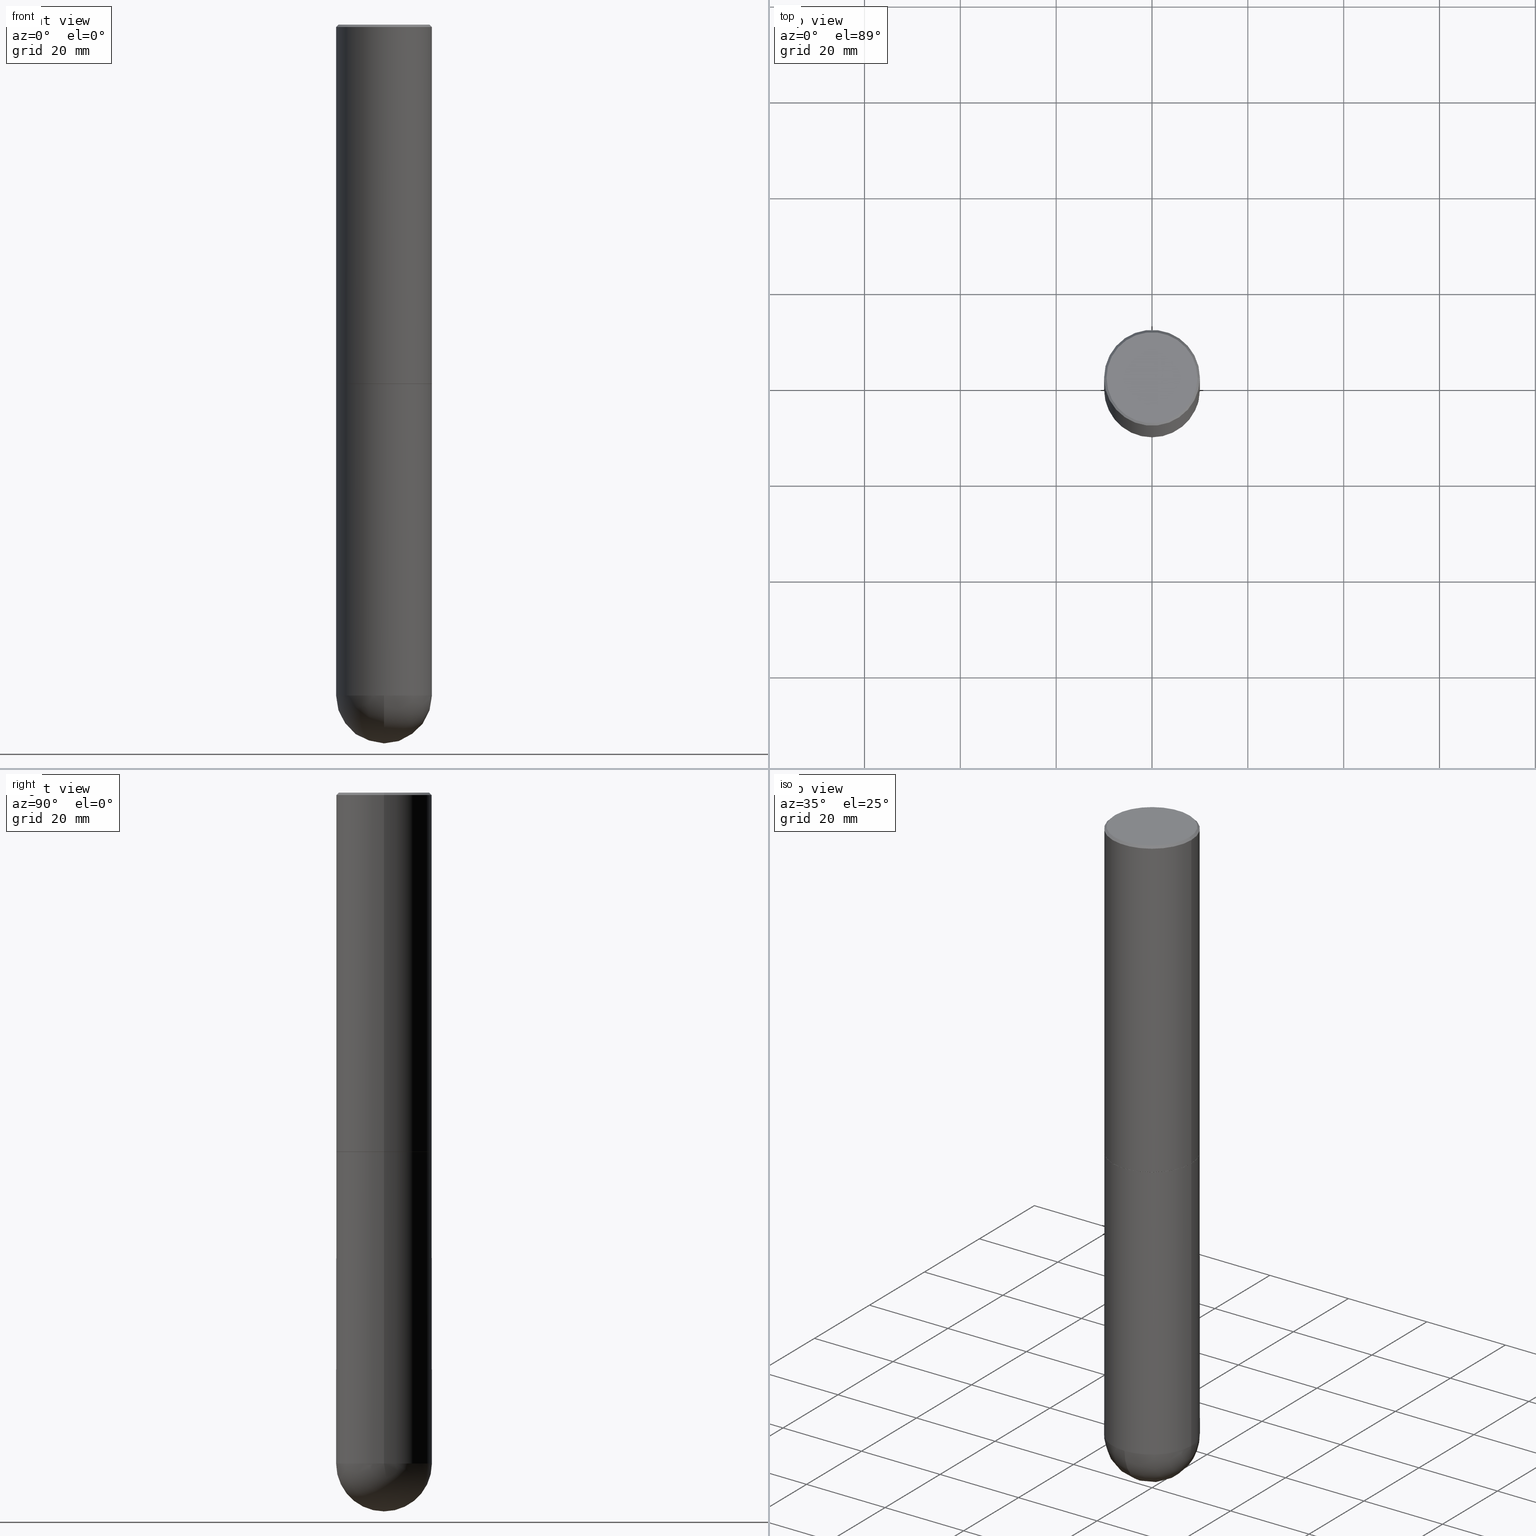
[diagram: canonical four-view strip — front | top / right | iso, engineering-drawing reading convention]
A machine part, canonical four-view strip (front | top / right | iso — engineering-drawing reading convention). The complete STEP part file that produces these views, byte-faithful:
ISO-10303-21;
HEADER;
FILE_DESCRIPTION (( 'STEP AP203' ),
    '1' );
FILE_NAME ('49529.STEP',
    '2024-04-10T12:15:42',
    ( '' ),
    ( '' ),
    'SwSTEP 2.0',
    'SolidWorks 2023',
    '' );
FILE_SCHEMA (( 'CONFIG_CONTROL_DESIGN' ));
ENDSEC;

DATA;
#1 = DIRECTION ( 'NONE',  ( -2.445468806185136877E-29, 3.491481338843145188E-15, 1.000000000000000000 ) ) ;
#2 = EDGE_LOOP ( 'NONE', ( #296, #62, #185, #7 ) ) ;
#3 = CC_DESIGN_PERSON_AND_ORGANIZATION_ASSIGNMENT ( #363, #161, ( #35 ) ) ;
#4 = PERSON_AND_ORGANIZATION_ROLE ( 'design_owner' ) ;
#5 = ORIENTED_EDGE ( 'NONE', *, *, #345, .T. ) ;
#6 = APPROVAL_ROLE ( '' ) ;
#7 = ORIENTED_EDGE ( 'NONE', *, *, #211, .F. ) ;
#8 = AXIS2_PLACEMENT_3D ( 'NONE', #251, #152, #124 ) ;
#9 = APPROVAL_PERSON_ORGANIZATION ( #227, #380, #6 ) ;
#10 = DIRECTION ( 'NONE',  ( 1.000000000000000000, 0.000000000000000000, 0.000000000000000000 ) ) ;
#11 = EDGE_LOOP ( 'NONE', ( #316, #5 ) ) ;
#12 = ADVANCED_FACE ( 'NONE', ( #362 ), #171, .T. ) ;
#13 = ORIENTED_EDGE ( 'NONE', *, *, #207, .F. ) ;
#14 = CC_DESIGN_DATE_AND_TIME_ASSIGNMENT ( #203, #201, ( #88 ) ) ;
#15 = SHAPE_DEFINITION_REPRESENTATION ( #189, #68 ) ;
#16 = PLANE ( 'NONE',  #182 ) ;
#17 = AXIS2_PLACEMENT_3D ( 'NONE', #404, #73, #376 ) ;
#18 = DIRECTION ( 'NONE',  ( 1.000000000000000000, -6.982962677686267499E-15, 0.000000000000000000 ) ) ;
#19 = DIRECTION ( 'NONE',  ( -2.445468806185136597E-29, 3.491481338843145583E-15, 1.000000000000000000 ) ) ;
#20 = EDGE_LOOP ( 'NONE', ( #92, #323, #364, #78 ) ) ;
#21 = FACE_OUTER_BOUND ( 'NONE', #42, .T. ) ;
#22 = CIRCLE ( 'NONE', #329, 0.3736999999999996991 ) ;
#23 = CC_DESIGN_APPROVAL ( #380, ( #35 ) ) ;
#24 = CARTESIAN_POINT ( 'NONE',  ( 0.3937000000000001609, -2.749192406205084400E-15, 1.919750796630860732E-29 ) ) ;
#25 = ADVANCED_FACE ( 'NONE', ( #114 ), #63, .T. ) ;
#26 = FACE_OUTER_BOUND ( 'NONE', #154, .T. ) ;
#27 = DIRECTION ( 'NONE',  ( -2.445468806185136597E-29, 3.491481338843145583E-15, 1.000000000000000000 ) ) ;
#28 = DIRECTION ( 'NONE',  ( -2.445468806185136597E-29, 3.491481338843145583E-15, 1.000000000000000000 ) ) ;
#29 = AXIS2_PLACEMENT_3D ( 'NONE', #53, #412, #381 ) ;
#30 = FACE_OUTER_BOUND ( 'NONE', #136, .T. ) ;
#31 = ADVANCED_FACE ( 'NONE', ( #21 ), #145, .T. ) ;
#32 = FACE_OUTER_BOUND ( 'NONE', #2, .T. ) ;
#33 = AXIS2_PLACEMENT_3D ( 'NONE', #148, #27, #81 ) ;
#34 = ORIENTED_EDGE ( 'NONE', *, *, #352, .F. ) ;
#35 = PRODUCT_DEFINITION ( 'UNKNOWN', '', #287, #387 ) ;
#36 = ORIENTED_EDGE ( 'NONE', *, *, #149, .F. ) ;
#37 = APPROVAL_DATE_TIME ( #322, #380 ) ;
#38 = VERTEX_POINT ( 'NONE', #398 ) ;
#39 = ORIENTED_EDGE ( 'NONE', *, *, #123, .F. ) ;
#40 = VECTOR ( 'NONE', #229, 39.37007874015748854 ) ;
#41 = DATE_TIME_ROLE ( 'creation_date' ) ;
#42 = EDGE_LOOP ( 'NONE', ( #69, #168, #291, #58 ) ) ;
#43 = PERSON_AND_ORGANIZATION ( #309, #302 ) ;
#44 = DIRECTION ( 'NONE',  ( 1.000000000000000000, -6.982962677686266711E-15, 4.869618210878415705E-29 ) ) ;
#45 = APPLICATION_CONTEXT ( 'configuration controlled 3d designs of mechanical parts and assemblies' ) ;
#46 = PERSON_AND_ORGANIZATION_ROLE ( 'creator' ) ;
#47 = CARTESIAN_POINT ( 'NONE',  ( 7.220735744022852519E-29, -1.030929694920215502E-14, -2.952700000000000102 ) ) ;
#48 = CIRCLE ( 'NONE', #268, 0.3937000000000000499 ) ;
#49 = CARTESIAN_POINT ( 'NONE',  ( 0.000000000000000000, 0.000000000000000000, 0.000000000000000000 ) ) ;
#50 = DIRECTION ( 'NONE',  ( 2.445468806185136597E-29, -3.491481338843145583E-15, -1.000000000000000000 ) ) ;
#51 = EDGE_CURVE ( 'NONE', #38, #159, #219, .T. ) ;
#52 = AXIS2_PLACEMENT_3D ( 'NONE', #49, #370, #109 ) ;
#53 = CARTESIAN_POINT ( 'NONE',  ( 4.890937612370295054E-31, -6.982962677686322424E-17, -0.02000000000000009062 ) ) ;
#54 = CARTESIAN_POINT ( 'NONE',  ( 7.220735744022853640E-29, -1.030929694920215659E-14, -2.952700000000000546 ) ) ;
#55 = CARTESIAN_POINT ( 'NONE',  ( -0.3937000000000001054, 2.797406750687515181E-15, -1.936584745033357016E-29 ) ) ;
#56 = EDGE_CURVE ( 'NONE', #38, #128, #199, .T. ) ;
#57 = DIRECTION ( 'NONE',  ( -2.445468806185136597E-29, 3.491481338843145583E-15, 1.000000000000000000 ) ) ;
#58 = ORIENTED_EDGE ( 'NONE', *, *, #75, .F. ) ;
#59 = CARTESIAN_POINT ( 'NONE',  ( -0.3937000000000003830, -2.390410796632568923E-15, -2.951700000000000212 ) ) ;
#60 = ADVANCED_FACE ( 'NONE', ( #242 ), #320, .T. ) ;
#61 = PERSON_AND_ORGANIZATION ( #309, #302 ) ;
#62 = ORIENTED_EDGE ( 'NONE', *, *, #383, .T. ) ;
#63 = CONICAL_SURFACE ( 'NONE', #301, 0.3937000000000000499, 0.7853981633974473908 ) ;
#64 = ORIENTED_EDGE ( 'NONE', *, *, #160, .F. ) ;
#65 = ADVANCED_FACE ( 'NONE', ( #240 ), #204, .T. ) ;
#66 = EDGE_LOOP ( 'NONE', ( #233, #331, #258, #195 ) ) ;
#67 = COORDINATED_UNIVERSAL_TIME_OFFSET ( 5, 0, .BEHIND. ) ;
#68 = ADVANCED_BREP_SHAPE_REPRESENTATION ( '49529', ( #238, #104, #321 ), #351 ) ;
#69 = ORIENTED_EDGE ( 'NONE', *, *, #253, .T. ) ;
#70 = CC_DESIGN_SECURITY_CLASSIFICATION ( #88, ( #287 ) ) ;
#71 = CC_DESIGN_APPROVAL ( #348, ( #287 ) ) ;
#72 = SECURITY_CLASSIFICATION_LEVEL ( 'unclassified' ) ;
#73 = DIRECTION ( 'NONE',  ( -2.445468806185136597E-29, 3.491481338843145583E-15, 1.000000000000000000 ) ) ;
#74 = DIRECTION ( 'NONE',  ( -1.000000000000000000, 6.982962677686265922E-15, -4.876176775795935793E-29 ) ) ;
#75 = EDGE_CURVE ( 'NONE', #266, #230, #208, .T. ) ;
#76 = DIRECTION ( 'NONE',  ( -1.000000000000000000, 6.982962677686265922E-15, 0.000000000000000000 ) ) ;
#77 = DIRECTION ( 'NONE',  ( -2.445468806185136597E-29, 3.491481338843145583E-15, 1.000000000000000000 ) ) ;
#78 = ORIENTED_EDGE ( 'NONE', *, *, #375, .F. ) ;
#79 = ADVANCED_FACE ( 'NONE', ( #112 ), #155, .T. ) ;
#80 = DIRECTION ( 'NONE',  ( -1.000000000000000000, 6.982962677686265922E-15, -4.883557194083112340E-29 ) ) ;
#81 = DIRECTION ( 'NONE',  ( 1.000000000000000000, -6.982962677686266711E-15, 4.869618210878415705E-29 ) ) ;
#82 = AXIS2_PLACEMENT_3D ( 'NONE', #210, #353, #84 ) ;
#83 = AXIS2_PLACEMENT_3D ( 'NONE', #96, #196, #127 ) ;
#84 = DIRECTION ( 'NONE',  ( 1.000000000000000000, -6.982962677686269077E-15, 0.000000000000000000 ) ) ;
#85 = CARTESIAN_POINT ( 'NONE',  ( 0.000000000000000000, 0.000000000000000000, 0.000000000000000000 ) ) ;
#86 = LINE ( 'NONE', #392, #279 ) ;
#87 = CARTESIAN_POINT ( 'NONE',  ( 0.3926999999999999935, -1.305150639272955380E-14, -2.952700000000000546 ) ) ;
#88 = SECURITY_CLASSIFICATION ( '', '', #72 ) ;
#89 = EDGE_CURVE ( 'NONE', #237, #292, #209, .T. ) ;
#90 = CARTESIAN_POINT ( 'NONE',  ( 0.3736999999999996991, -2.667287895133366781E-15, 2.774533118565451882E-16 ) ) ;
#91 = CARTESIAN_POINT ( 'NONE',  ( 0.3937000000000000499, -1.305848935540723823E-14, -2.952700000000000102 ) ) ;
#92 = ORIENTED_EDGE ( 'NONE', *, *, #383, .F. ) ;
#93 = APPLICATION_PROTOCOL_DEFINITION ( 'international standard', 'config_control_design', 1994, #45 ) ;
#94 = CIRCLE ( 'NONE', #33, 0.3736999999999996991 ) ;
#95 = VERTEX_POINT ( 'NONE', #307 ) ;
#96 = CARTESIAN_POINT ( 'NONE',  ( 7.218290275216666916E-29, -1.030580546786331359E-14, -2.951700000000000212 ) ) ;
#97 = ORIENTED_EDGE ( 'NONE', *, *, #308, .T. ) ;
#98 = APPLICATION_CONTEXT ( 'configuration controlled 3d designs of mechanical parts and assemblies' ) ;
#99 = VERTEX_POINT ( 'NONE', #276 ) ;
#100 = EDGE_LOOP ( 'NONE', ( #200, #97, #157, #390, #393 ) ) ;
#101 = AXIS2_PLACEMENT_3D ( 'NONE', #178, #374, #310 ) ;
#102 = CIRCLE ( 'NONE', #132, 0.3937000000000001054 ) ;
#103 = CC_DESIGN_PERSON_AND_ORGANIZATION_ASSIGNMENT ( #61, #4, ( #235 ) ) ;
#104 = MANIFOLD_SOLID_BREP ( 'Body-Move/Copy2[2]', #166 ) ;
#105 = CARTESIAN_POINT ( 'NONE',  ( 4.890937612370295054E-31, -6.982962677686322424E-17, -0.02000000000000009062 ) ) ;
#106 = PERSON_AND_ORGANIZATION ( #309, #302 ) ;
#107 = DIRECTION ( 'NONE',  ( 1.000000000000000000, -6.982962677686266711E-15, 0.000000000000000000 ) ) ;
#108 = APPROVAL_DATE_TIME ( #369, #140 ) ;
#109 = DIRECTION ( 'NONE',  ( 1.000000000000000000, -6.982962677686266711E-15, 4.876176775795935793E-29 ) ) ;
#110 = EDGE_LOOP ( 'NONE', ( #228, #39, #146, #197 ) ) ;
#111 = AXIS2_PLACEMENT_3D ( 'NONE', #54, #57, #153 ) ;
#112 = FACE_OUTER_BOUND ( 'NONE', #131, .T. ) ;
#113 = CC_DESIGN_PERSON_AND_ORGANIZATION_ASSIGNMENT ( #170, #300, ( #287 ) ) ;
#114 = FACE_OUTER_BOUND ( 'NONE', #110, .T. ) ;
#115 = CARTESIAN_POINT ( 'NONE',  ( -0.3736999999999996991, 2.644447966039788269E-15, 2.774533118565083582E-16 ) ) ;
#116 = CIRCLE ( 'NONE', #174, 0.3937000000000000499 ) ;
#117 = CARTESIAN_POINT ( 'NONE',  ( 0.3937000000000000499, -2.770807688499515734E-15, -0.02000000000000009062 ) ) ;
#118 = EDGE_CURVE ( 'NONE', #159, #99, #236, .T. ) ;
#119 = VECTOR ( 'NONE', #284, 39.37007874015748143 ) ;
#120 = PLANE ( 'NONE',  #8 ) ;
#121 = UNCERTAINTY_MEASURE_WITH_UNIT (LENGTH_MEASURE( 1.000000000000000082E-05 ), #133, 'distance_accuracy_value', 'NONE');
#122 = CARTESIAN_POINT ( 'NONE',  ( 0.3937000000000000499, -2.770807688499515734E-15, -0.02000000000000009062 ) ) ;
#123 = EDGE_CURVE ( 'NONE', #218, #395, #22, .T. ) ;
#124 = DIRECTION ( 'NONE',  ( 1.000000000000000000, -6.982962677686265922E-15, 4.876176775795935793E-29 ) ) ;
#125 = LOCAL_TIME ( 8, 15, 42.00000000000000000, #324 ) ;
#126 = CC_DESIGN_PERSON_AND_ORGANIZATION_ASSIGNMENT ( #43, #46, ( #287 ) ) ;
#127 = DIRECTION ( 'NONE',  ( 1.000000000000000000, -6.982962677686269077E-15, 0.000000000000000000 ) ) ;
#128 = VERTEX_POINT ( 'NONE', #298 ) ;
#129 = EDGE_LOOP ( 'NONE', ( #295, #216 ) ) ;
#130 = CARTESIAN_POINT ( 'NONE',  ( 0.000000000000000000, 0.000000000000000000, 0.000000000000000000 ) ) ;
#131 = EDGE_LOOP ( 'NONE', ( #328, #188, #356, #13 ) ) ;
#132 = AXIS2_PLACEMENT_3D ( 'NONE', #359, #386, #290 ) ;
#133 =( CONVERSION_BASED_UNIT ( 'INCH', #167 ) LENGTH_UNIT ( ) NAMED_UNIT ( #275 ) );
#134 = ORIENTED_EDGE ( 'NONE', *, *, #56, .F. ) ;
#135 = APPROVAL_ROLE ( '' ) ;
#136 = EDGE_LOOP ( 'NONE', ( #193, #162 ) ) ;
#137 = ADVANCED_FACE ( 'NONE', ( #147 ), #16, .F. ) ;
#138 = CARTESIAN_POINT ( 'NONE',  ( 2.749192406205155397E-15, 0.3936999999999897248, -2.952700000000001435 ) ) ;
#139 = AXIS2_PLACEMENT_3D ( 'NONE', #144, #272, #401 ) ;
#140 = APPROVAL ( #172, 'UNSPECIFIED' ) ;
#141 = COORDINATED_UNIVERSAL_TIME_OFFSET ( 5, 0, .BEHIND. ) ;
#142 = CARTESIAN_POINT ( 'NONE',  ( 1.347893496593123646E-28, -1.924434684343564878E-14, -5.511800000000000033 ) ) ;
#143 = APPROVAL_DATE_TIME ( #332, #348 ) ;
#144 = CARTESIAN_POINT ( 'NONE',  ( 7.220735744022853640E-29, -1.030929694920215659E-14, -2.952700000000000546 ) ) ;
#145 = CYLINDRICAL_SURFACE ( 'NONE', #17, 0.3937000000000001609 ) ;
#146 = ORIENTED_EDGE ( 'NONE', *, *, #207, .T. ) ;
#147 = FACE_OUTER_BOUND ( 'NONE', #11, .T. ) ;
#148 = CARTESIAN_POINT ( 'NONE',  ( -6.785034193178928885E-45, 9.687230607472908306E-31, 2.774533118565267485E-16 ) ) ;
#149 = EDGE_CURVE ( 'NONE', #388, #95, #274, .T. ) ;
#150 = DIRECTION ( 'NONE',  ( 1.000000000000000000, -6.982962677686265133E-15, 0.000000000000000000 ) ) ;
#151 = CARTESIAN_POINT ( 'NONE',  ( 7.220735744022852519E-29, -1.030929694920215502E-14, -2.952700000000000102 ) ) ;
#152 = DIRECTION ( 'NONE',  ( -2.438088387897960049E-29, 3.491481338843145188E-15, 1.000000000000000000 ) ) ;
#153 = DIRECTION ( 'NONE',  ( 1.000000000000000000, -6.982962677686265133E-15, 0.000000000000000000 ) ) ;
#154 = EDGE_LOOP ( 'NONE', ( #134, #225, #64, #325 ) ) ;
#155 = CONICAL_SURFACE ( 'NONE', #206, 0.3937000000000000499, 0.7853981633974473908 ) ;
#156 = CARTESIAN_POINT ( 'NONE',  ( 4.890937612370295054E-31, -6.982962677686322424E-17, -0.02000000000000009062 ) ) ;
#157 = ORIENTED_EDGE ( 'NONE', *, *, #402, .T. ) ;
#158 =( NAMED_UNIT ( * ) SI_UNIT ( $, .STERADIAN. ) SOLID_ANGLE_UNIT ( ) );
#159 = VERTEX_POINT ( 'NONE', #306 ) ;
#160 = EDGE_CURVE ( 'NONE', #259, #159, #250, .T. ) ;
#161 = PERSON_AND_ORGANIZATION_ROLE ( 'creator' ) ;
#162 = ORIENTED_EDGE ( 'NONE', *, *, #169, .F. ) ;
#163 = CARTESIAN_POINT ( 'NONE',  ( 0.000000000000000000, 0.000000000000000000, 0.000000000000000000 ) ) ;
#164 = AXIS2_PLACEMENT_3D ( 'NONE', #378, #312, #150 ) ;
#165 = ORIENTED_EDGE ( 'NONE', *, *, #308, .F. ) ;
#166 = CLOSED_SHELL ( 'NONE', ( #286, #31, #79, #25, #339, #60, #194, #281 ) ) ;
#167 = LENGTH_MEASURE_WITH_UNIT ( LENGTH_MEASURE( 0.02539999999999999897 ), #222 );
#168 = ORIENTED_EDGE ( 'NONE', *, *, #89, .T. ) ;
#169 = EDGE_CURVE ( 'NONE', #283, #347, #358, .T. ) ;
#170 = PERSON_AND_ORGANIZATION ( #309, #302 ) ;
#171 = CYLINDRICAL_SURFACE ( 'NONE', #52, 0.3937000000000001054 ) ;
#172 = APPROVAL_STATUS ( 'not_yet_approved' ) ;
#173 = DIRECTION ( 'NONE',  ( 1.000000000000000000, -6.982962677686265133E-15, 0.000000000000000000 ) ) ;
#174 = AXIS2_PLACEMENT_3D ( 'NONE', #151, #28, #280 ) ;
#175 = VECTOR ( 'NONE', #202, 39.37007874015748143 ) ;
#176 = DIRECTION ( 'NONE',  ( -2.445468806185136597E-29, 3.491481338843145583E-15, 1.000000000000000000 ) ) ;
#177 = DIRECTION ( 'NONE',  ( -2.445468806185136877E-29, 3.491481338843145188E-15, 1.000000000000000000 ) ) ;
#178 = CARTESIAN_POINT ( 'NONE',  ( 1.314781518801735134E-28, -1.971852921157570065E-14, -5.511800000000000033 ) ) ;
#179 = CARTESIAN_POINT ( 'NONE',  ( 1.347893496593123646E-28, -1.924434684343564878E-14, -5.511800000000000033 ) ) ;
#180 = DIRECTION ( 'NONE',  ( 6.982962677686265922E-15, 1.000000000000000000, -2.775563112689116301E-15 ) ) ;
#181 = DIRECTION ( 'NONE',  ( -2.445468806185136597E-29, 3.491481338843145583E-15, 1.000000000000000000 ) ) ;
#182 = AXIS2_PLACEMENT_3D ( 'NONE', #138, #368, #74 ) ;
#183 = EDGE_CURVE ( 'NONE', #99, #95, #315, .T. ) ;
#184 = CARTESIAN_POINT ( 'NONE',  ( -0.3937000000000000499, 2.679362779428219918E-15, -0.02000000000000009062 ) ) ;
#185 = ORIENTED_EDGE ( 'NONE', *, *, #253, .F. ) ;
#186 = CARTESIAN_POINT ( 'NONE',  ( 2.609533152651355437E-15, 0.3736999999999996991, -1.166039920397419176E-15 ) ) ;
#187 = DIRECTION ( 'NONE',  ( -2.445468806185136597E-29, 3.491481338843145583E-15, 1.000000000000000000 ) ) ;
#188 = ORIENTED_EDGE ( 'NONE', *, *, #224, .T. ) ;
#189 = PRODUCT_DEFINITION_SHAPE ( 'NONE', 'NONE',  #35 ) ;
#190 = CONICAL_SURFACE ( 'NONE', #111, 0.3926999999999999935, 0.7853981633974141952 ) ;
#191 = LINE ( 'NONE', #327, #40 ) ;
#192 = LOCAL_TIME ( 8, 15, 42.00000000000000000, #305 ) ;
#193 = ORIENTED_EDGE ( 'NONE', *, *, #334, .F. ) ;
#194 = ADVANCED_FACE ( 'NONE', ( #30 ), #120, .F. ) ;
#195 = ORIENTED_EDGE ( 'NONE', *, *, #299, .F. ) ;
#196 = DIRECTION ( 'NONE',  ( -2.445468806185136597E-29, 3.491481338843145583E-15, 1.000000000000000000 ) ) ;
#197 = ORIENTED_EDGE ( 'NONE', *, *, #299, .T. ) ;
#198 = CALENDAR_DATE ( 2024, 10, 4 ) ;
#199 = CIRCLE ( 'NONE', #101, 0.3937000000000001054 ) ;
#200 = ORIENTED_EDGE ( 'NONE', *, *, #183, .F. ) ;
#201 = DATE_TIME_ROLE ( 'classification_date' ) ;
#202 = DIRECTION ( 'NONE',  ( -2.445468806185136877E-29, 3.491481338843145188E-15, 1.000000000000000000 ) ) ;
#203 = DATE_AND_TIME ( #234, #244 ) ;
#204 = SPHERICAL_SURFACE ( 'NONE', #408, 0.3937000000000001054 ) ;
#205 = DIRECTION ( 'NONE',  ( 6.982962677686265133E-15, 1.000000000000000000, 0.000000000000000000 ) ) ;
#206 = AXIS2_PLACEMENT_3D ( 'NONE', #105, #50, #405 ) ;
#207 = EDGE_CURVE ( 'NONE', #218, #292, #215, .T. ) ;
#208 = LINE ( 'NONE', #24, #175 ) ;
#209 = LINE ( 'NONE', #269, #285 ) ;
#210 = CARTESIAN_POINT ( 'NONE',  ( 7.218290275216666916E-29, -1.030580546786331359E-14, -2.951700000000000212 ) ) ;
#211 = EDGE_CURVE ( 'NONE', #347, #266, #282, .T. ) ;
#212 = AXIS2_PLACEMENT_3D ( 'NONE', #336, #77, #173 ) ;
#213 = CIRCLE ( 'NONE', #83, 0.3937000000000002720 ) ;
#214 = CARTESIAN_POINT ( 'NONE',  ( 1.314781518801735134E-28, -1.971852921157570065E-14, -5.511800000000000033 ) ) ;
#215 = LINE ( 'NONE', #184, #119 ) ;
#216 = ORIENTED_EDGE ( 'NONE', *, *, #231, .T. ) ;
#217 = DIRECTION ( 'NONE',  ( -2.445468806185136877E-29, 3.491481338843145188E-15, 1.000000000000000000 ) ) ;
#218 = VERTEX_POINT ( 'NONE', #115 ) ;
#219 = CIRCLE ( 'NONE', #391, 0.3937000000000001054 ) ;
#220 = CC_DESIGN_PERSON_AND_ORGANIZATION_ASSIGNMENT ( #335, #297, ( #88 ) ) ;
#221 = DIRECTION ( 'NONE',  ( -1.000000000000000000, 6.982962677686265922E-15, -4.876176775795935793E-29 ) ) ;
#222 =( LENGTH_UNIT ( ) NAMED_UNIT ( * ) SI_UNIT ( $, .METRE. ) );
#223 = APPLICATION_PROTOCOL_DEFINITION ( 'international standard', 'config_control_design', 1994, #98 ) ;
#224 = EDGE_CURVE ( 'NONE', #395, #230, #411, .T. ) ;
#225 = ORIENTED_EDGE ( 'NONE', *, *, #51, .T. ) ;
#226 = VECTOR ( 'NONE', #252, 39.37007874015748854 ) ;
#227 = PERSON_AND_ORGANIZATION ( #309, #302 ) ;
#228 = ORIENTED_EDGE ( 'NONE', *, *, #224, .F. ) ;
#229 = DIRECTION ( 'NONE',  ( -0.7071067811865232589, 7.493145998870265808E-15, 0.7071067811865715536 ) ) ;
#230 = VERTEX_POINT ( 'NONE', #122 ) ;
#231 = EDGE_CURVE ( 'NONE', #395, #218, #94, .T. ) ;
#232 = CALENDAR_DATE ( 2024, 10, 4 ) ;
#233 = ORIENTED_EDGE ( 'NONE', *, *, #89, .F. ) ;
#234 = CALENDAR_DATE ( 2024, 10, 4 ) ;
#235 = PRODUCT ( '49529', '49529', '', ( #355 ) ) ;
#236 = CIRCLE ( 'NONE', #396, 0.3937000000000001054 ) ;
#237 = VERTEX_POINT ( 'NONE', #59 ) ;
#238 = MANIFOLD_SOLID_BREP ( 'Body-Move/Copy2[1]', #372 ) ;
#239 = DIRECTION ( 'NONE',  ( 6.982962677686265922E-15, 1.000000000000000000, -2.775563112689116301E-15 ) ) ;
#240 = FACE_OUTER_BOUND ( 'NONE', #403, .T. ) ;
#241 = APPROVAL_ROLE ( '' ) ;
#242 = FACE_OUTER_BOUND ( 'NONE', #20, .T. ) ;
#243 = VECTOR ( 'NONE', #377, 39.37007874015748143 ) ;
#244 = LOCAL_TIME ( 8, 15, 42.00000000000000000, #141 ) ;
#245 = DIRECTION ( 'NONE',  ( 1.000000000000000000, -6.982962677686266711E-15, 0.000000000000000000 ) ) ;
#246 = CARTESIAN_POINT ( 'NONE',  ( 4.890937612370295054E-31, -6.982962677686322424E-17, -0.02000000000000009062 ) ) ;
#247 = CC_DESIGN_DATE_AND_TIME_ASSIGNMENT ( #330, #41, ( #35 ) ) ;
#248 = DIRECTION ( 'NONE',  ( -2.445468806185136597E-29, 3.491481338843145583E-15, 1.000000000000000000 ) ) ;
#249 = AXIS2_PLACEMENT_3D ( 'NONE', #214, #344, #180 ) ;
#250 = CIRCLE ( 'NONE', #304, 0.3937000000000001054 ) ;
#251 = CARTESIAN_POINT ( 'NONE',  ( 7.220735744022853640E-29, -1.030929694920215659E-14, -2.952700000000000546 ) ) ;
#252 = DIRECTION ( 'NONE',  ( 0.7071067811865232589, -2.468850131082003836E-15, 0.7071067811865715536 ) ) ;
#253 = EDGE_CURVE ( 'NONE', #266, #237, #267, .T. ) ;
#254 = FACE_OUTER_BOUND ( 'NONE', #129, .T. ) ;
#255 = APPROVAL_PERSON_ORGANIZATION ( #106, #140, #135 ) ;
#256 = DIRECTION ( 'NONE',  ( 1.000000000000000000, -6.982962677686265922E-15, 0.000000000000000000 ) ) ;
#257 = FACE_OUTER_BOUND ( 'NONE', #100, .T. ) ;
#258 = ORIENTED_EDGE ( 'NONE', *, *, #75, .T. ) ;
#259 = VERTEX_POINT ( 'NONE', #410 ) ;
#260 = AXIS2_PLACEMENT_3D ( 'NONE', #179, #248, #311 ) ;
#261 = DIRECTION ( 'NONE',  ( -2.445468806185136597E-29, 3.491481338843145583E-15, 1.000000000000000000 ) ) ;
#262 = LOCAL_TIME ( 8, 15, 42.00000000000000000, #67 ) ;
#263 = ORIENTED_EDGE ( 'NONE', *, *, #51, .F. ) ;
#264 = APPROVAL_STATUS ( 'not_yet_approved' ) ;
#265 = ORIENTED_EDGE ( 'NONE', *, *, #183, .T. ) ;
#266 = VERTEX_POINT ( 'NONE', #342 ) ;
#267 = CIRCLE ( 'NONE', #82, 0.3937000000000002720 ) ;
#268 = AXIS2_PLACEMENT_3D ( 'NONE', #156, #261, #256 ) ;
#269 = CARTESIAN_POINT ( 'NONE',  ( -0.3937000000000001609, 2.797406750687515575E-15, -1.936584745033357296E-29 ) ) ;
#270 = COORDINATED_UNIVERSAL_TIME_OFFSET ( 5, 0, .BEHIND. ) ;
#271 = CARTESIAN_POINT ( 'NONE',  ( 1.314781518801735134E-28, -1.971852921157570065E-14, -5.511800000000000033 ) ) ;
#272 = DIRECTION ( 'NONE',  ( -2.445468806185136597E-29, 3.491481338843145583E-15, 1.000000000000000000 ) ) ;
#273 = DIRECTION ( 'NONE',  ( 2.445468806185136597E-29, -3.491481338843145583E-15, -1.000000000000000000 ) ) ;
#274 = CIRCLE ( 'NONE', #385, 0.3937000000000000499 ) ;
#275 = DIMENSIONAL_EXPONENTS ( 1.000000000000000000, 0.000000000000000000, 0.000000000000000000, 0.000000000000000000, 0.000000000000000000, 0.000000000000000000, 0.000000000000000000 ) ;
#276 = CARTESIAN_POINT ( 'NONE',  ( -0.3937000000000001054, -1.197941514563138553E-14, -5.511800000000000033 ) ) ;
#277 = PRODUCT_RELATED_PRODUCT_CATEGORY ( 'detail', '', ( #235 ) ) ;
#278 = FACE_OUTER_BOUND ( 'NONE', #66, .T. ) ;
#279 = VECTOR ( 'NONE', #1, 39.37007874015748143 ) ;
#280 = DIRECTION ( 'NONE',  ( 1.000000000000000000, -6.982962677686267499E-15, 0.000000000000000000 ) ) ;
#281 = ADVANCED_FACE ( 'NONE', ( #254 ), #349, .F. ) ;
#282 = LINE ( 'NONE', #87, #226 ) ;
#283 = VERTEX_POINT ( 'NONE', #317 ) ;
#284 = DIRECTION ( 'NONE',  ( -0.7071067811865469066, 2.468850131082250355E-15, -0.7071067811865481278 ) ) ;
#285 = VECTOR ( 'NONE', #177, 39.37007874015748143 ) ;
#286 = ADVANCED_FACE ( 'NONE', ( #32 ), #190, .T. ) ;
#287 = PRODUCT_DEFINITION_FORMATION_WITH_SPECIFIED_SOURCE ( 'ANY', '', #235, .NOT_KNOWN. ) ;
#288 = CYLINDRICAL_SURFACE ( 'NONE', #373, 0.3937000000000001054 ) ;
#289 = ORIENTED_EDGE ( 'NONE', *, *, #118, .F. ) ;
#290 = DIRECTION ( 'NONE',  ( 1.000000000000000000, -6.982962677686266711E-15, 0.000000000000000000 ) ) ;
#291 = ORIENTED_EDGE ( 'NONE', *, *, #361, .F. ) ;
#292 = VERTEX_POINT ( 'NONE', #346 ) ;
#293 = CIRCLE ( 'NONE', #164, 0.3926999999999999935 ) ;
#294 = CC_DESIGN_APPROVAL ( #140, ( #88 ) ) ;
#295 = ORIENTED_EDGE ( 'NONE', *, *, #123, .T. ) ;
#296 = ORIENTED_EDGE ( 'NONE', *, *, #334, .T. ) ;
#297 = PERSON_AND_ORGANIZATION_ROLE ( 'classification_officer' ) ;
#298 = CARTESIAN_POINT ( 'NONE',  ( -2.797406750687381075E-15, -0.3937000000000196454, -5.511799999999999145 ) ) ;
#299 = EDGE_CURVE ( 'NONE', #292, #230, #350, .T. ) ;
#300 = PERSON_AND_ORGANIZATION_ROLE ( 'design_supplier' ) ;
#301 = AXIS2_PLACEMENT_3D ( 'NONE', #246, #273, #76 ) ;
#302 = ORGANIZATION ( 'UNSPECIFIED', 'UNSPECIFIED', '' ) ;
#303 = DIRECTION ( 'NONE',  ( -2.445468806185136597E-29, 3.491481338843145583E-15, 1.000000000000000000 ) ) ;
#304 = AXIS2_PLACEMENT_3D ( 'NONE', #142, #19, #107 ) ;
#305 = COORDINATED_UNIVERSAL_TIME_OFFSET ( 5, 0, .BEHIND. ) ;
#306 = CARTESIAN_POINT ( 'NONE',  ( 2.749192406205216928E-15, 0.3936999999999805655, -5.511800000000000921 ) ) ;
#307 = CARTESIAN_POINT ( 'NONE',  ( -0.3937000000000000499, -1.197941514563138553E-14, -2.952700000000000102 ) ) ;
#308 = EDGE_CURVE ( 'NONE', #99, #128, #337, .T. ) ;
#309 = PERSON ( 'UNSPECIFIED', 'UNSPECIFIED', 'UNSPECIFIED', ('UNSPECIFIED'), ('UNSPECIFIED'), ('UNSPECIFIED') ) ;
#310 = DIRECTION ( 'NONE',  ( -7.105427357601001070E-15, -1.000000000000000000, 0.000000000000000000 ) ) ;
#311 = DIRECTION ( 'NONE',  ( 1.000000000000000000, -6.982962677686266711E-15, 0.000000000000000000 ) ) ;
#312 = DIRECTION ( 'NONE',  ( -2.445468806185136597E-29, 3.491481338843145583E-15, 1.000000000000000000 ) ) ;
#313 = DIRECTION ( 'NONE',  ( 1.000000000000000000, -6.982962677686266711E-15, 4.876176775795935793E-29 ) ) ;
#314 = VECTOR ( 'NONE', #217, 39.37007874015748143 ) ;
#315 = LINE ( 'NONE', #55, #314 ) ;
#316 = ORIENTED_EDGE ( 'NONE', *, *, #149, .T. ) ;
#317 = CARTESIAN_POINT ( 'NONE',  ( -0.3926999999999999935, -7.513697171524020413E-15, -2.952700000000000546 ) ) ;
#318 = DIRECTION ( 'NONE',  ( 1.000000000000000000, -6.982962677686266711E-15, 4.876176775795935793E-29 ) ) ;
#319 = EDGE_LOOP ( 'NONE', ( #367, #265, #36, #34, #394 ) ) ;
#320 = CONICAL_SURFACE ( 'NONE', #212, 0.3926999999999999935, 0.7853981633974141952 ) ;
#321 = AXIS2_PLACEMENT_3D ( 'NONE', #163, #389, #10 ) ;
#322 = DATE_AND_TIME ( #232, #125 ) ;
#323 = ORIENTED_EDGE ( 'NONE', *, *, #169, .T. ) ;
#324 = COORDINATED_UNIVERSAL_TIME_OFFSET ( 5, 0, .BEHIND. ) ;
#325 = ORIENTED_EDGE ( 'NONE', *, *, #402, .F. ) ;
#326 = ADVANCED_FACE ( 'NONE', ( #26 ), #406, .T. ) ;
#327 = CARTESIAN_POINT ( 'NONE',  ( -0.3926999999999999935, -7.518995625872242816E-15, -2.952700000000000546 ) ) ;
#328 = ORIENTED_EDGE ( 'NONE', *, *, #231, .F. ) ;
#329 = AXIS2_PLACEMENT_3D ( 'NONE', #341, #176, #44 ) ;
#330 = DATE_AND_TIME ( #198, #262 ) ;
#331 = ORIENTED_EDGE ( 'NONE', *, *, #375, .T. ) ;
#332 = DATE_AND_TIME ( #371, #409 ) ;
#333 = DIRECTION ( 'NONE',  ( -2.445468806185136597E-29, 3.491481338843145583E-15, 1.000000000000000000 ) ) ;
#334 = EDGE_CURVE ( 'NONE', #347, #283, #293, .T. ) ;
#335 = PERSON_AND_ORGANIZATION ( #309, #302 ) ;
#336 = CARTESIAN_POINT ( 'NONE',  ( 7.220735744022853640E-29, -1.030929694920215659E-14, -2.952700000000000546 ) ) ;
#337 = CIRCLE ( 'NONE', #260, 0.3937000000000001054 ) ;
#338 = CARTESIAN_POINT ( 'NONE',  ( 1.314781518801735134E-28, -1.971852921157570065E-14, -5.511800000000000033 ) ) ;
#339 = ADVANCED_FACE ( 'NONE', ( #278 ), #407, .T. ) ;
#340 = DIRECTION ( 'NONE',  ( 1.000000000000000000, -6.982962677686265922E-15, 4.883557194083112340E-29 ) ) ;
#341 = CARTESIAN_POINT ( 'NONE',  ( -6.785034193178928885E-45, 9.687230607472908306E-31, 2.774533118565267485E-16 ) ) ;
#342 = CARTESIAN_POINT ( 'NONE',  ( 0.3937000000000002720, -1.305499787406839996E-14, -2.951700000000000212 ) ) ;
#343 = APPROVAL_PERSON_ORGANIZATION ( #365, #348, #241 ) ;
#344 = DIRECTION ( 'NONE',  ( -1.000000000000000000, 6.982962677686265922E-15, -4.883557194083112340E-29 ) ) ;
#345 = EDGE_CURVE ( 'NONE', #95, #388, #116, .T. ) ;
#346 = CARTESIAN_POINT ( 'NONE',  ( -0.3937000000000000499, 2.679362779428219918E-15, -0.02000000000000009062 ) ) ;
#347 = VERTEX_POINT ( 'NONE', #382 ) ;
#348 = APPROVAL ( #397, 'UNSPECIFIED' ) ;
#349 = PLANE ( 'NONE',  #379 ) ;
#350 = CIRCLE ( 'NONE', #29, 0.3937000000000000499 ) ;
#351 =( GEOMETRIC_REPRESENTATION_CONTEXT ( 3 ) GLOBAL_UNCERTAINTY_ASSIGNED_CONTEXT ( ( #121 ) ) GLOBAL_UNIT_ASSIGNED_CONTEXT ( ( #133, #354, #158 ) ) REPRESENTATION_CONTEXT ( 'NONE', 'WORKASPACE' ) );
#352 = EDGE_CURVE ( 'NONE', #259, #388, #86, .T. ) ;
#353 = DIRECTION ( 'NONE',  ( -2.445468806185136597E-29, 3.491481338843145583E-15, 1.000000000000000000 ) ) ;
#354 =( NAMED_UNIT ( * ) PLANE_ANGLE_UNIT ( ) SI_UNIT ( $, .RADIAN. ) );
#355 = MECHANICAL_CONTEXT ( 'NONE', #98, 'mechanical' ) ;
#356 = ORIENTED_EDGE ( 'NONE', *, *, #361, .T. ) ;
#357 = AXIS2_PLACEMENT_3D ( 'NONE', #85, #181, #313 ) ;
#358 = CIRCLE ( 'NONE', #139, 0.3926999999999999935 ) ;
#359 = CARTESIAN_POINT ( 'NONE',  ( 1.347893496593123646E-28, -1.924434684343564878E-14, -5.511800000000000033 ) ) ;
#360 = ORIENTED_EDGE ( 'NONE', *, *, #56, .T. ) ;
#361 = EDGE_CURVE ( 'NONE', #230, #292, #48, .T. ) ;
#362 = FACE_OUTER_BOUND ( 'NONE', #319, .T. ) ;
#363 = PERSON_AND_ORGANIZATION ( #309, #302 ) ;
#364 = ORIENTED_EDGE ( 'NONE', *, *, #211, .T. ) ;
#365 = PERSON_AND_ORGANIZATION ( #309, #302 ) ;
#366 = ADVANCED_FACE ( 'NONE', ( #257 ), #288, .T. ) ;
#367 = ORIENTED_EDGE ( 'NONE', *, *, #118, .T. ) ;
#368 = DIRECTION ( 'NONE',  ( 2.438088387897960049E-29, -3.491481338843145188E-15, -1.000000000000000000 ) ) ;
#369 = DATE_AND_TIME ( #400, #192 ) ;
#370 = DIRECTION ( 'NONE',  ( -2.445468806185136597E-29, 3.491481338843145583E-15, 1.000000000000000000 ) ) ;
#371 = CALENDAR_DATE ( 2024, 10, 4 ) ;
#372 = CLOSED_SHELL ( 'NONE', ( #12, #65, #326, #137, #366 ) ) ;
#373 = AXIS2_PLACEMENT_3D ( 'NONE', #130, #187, #318 ) ;
#374 = DIRECTION ( 'NONE',  ( -1.000000000000000000, 7.105427357601001070E-15, -4.926315508542082329E-29 ) ) ;
#375 = EDGE_CURVE ( 'NONE', #237, #266, #213, .T. ) ;
#376 = DIRECTION ( 'NONE',  ( 1.000000000000000000, -6.982962677686266711E-15, 4.876176775795935793E-29 ) ) ;
#377 = DIRECTION ( 'NONE',  ( 0.7071067811865469066, -7.319954787623254468E-15, -0.7071067811865481278 ) ) ;
#378 = CARTESIAN_POINT ( 'NONE',  ( 7.220735744022853640E-29, -1.030929694920215659E-14, -2.952700000000000546 ) ) ;
#379 = AXIS2_PLACEMENT_3D ( 'NONE', #186, #384, #221 ) ;
#380 = APPROVAL ( #264, 'UNSPECIFIED' ) ;
#381 = DIRECTION ( 'NONE',  ( 1.000000000000000000, -6.982962677686265922E-15, 0.000000000000000000 ) ) ;
#382 = CARTESIAN_POINT ( 'NONE',  ( 0.3926999999999999935, -1.305150639272955380E-14, -2.952700000000000546 ) ) ;
#383 = EDGE_CURVE ( 'NONE', #283, #237, #191, .T. ) ;
#384 = DIRECTION ( 'NONE',  ( 2.438088387897960049E-29, -3.491481338843145188E-15, -1.000000000000000000 ) ) ;
#385 = AXIS2_PLACEMENT_3D ( 'NONE', #47, #303, #18 ) ;
#386 = DIRECTION ( 'NONE',  ( -2.445468806185136597E-29, 3.491481338843145583E-15, 1.000000000000000000 ) ) ;
#387 = DESIGN_CONTEXT ( 'detailed design', #45, 'design' ) ;
#388 = VERTEX_POINT ( 'NONE', #91 ) ;
#389 = DIRECTION ( 'NONE',  ( 0.000000000000000000, 0.000000000000000000, 1.000000000000000000 ) ) ;
#390 = ORIENTED_EDGE ( 'NONE', *, *, #352, .T. ) ;
#391 = AXIS2_PLACEMENT_3D ( 'NONE', #271, #340, #205 ) ;
#392 = CARTESIAN_POINT ( 'NONE',  ( 0.3937000000000001054, -2.749192406205084005E-15, 1.919750796630860452E-29 ) ) ;
#393 = ORIENTED_EDGE ( 'NONE', *, *, #345, .F. ) ;
#394 = ORIENTED_EDGE ( 'NONE', *, *, #160, .T. ) ;
#395 = VERTEX_POINT ( 'NONE', #90 ) ;
#396 = AXIS2_PLACEMENT_3D ( 'NONE', #399, #333, #245 ) ;
#397 = APPROVAL_STATUS ( 'not_yet_approved' ) ;
#398 = CARTESIAN_POINT ( 'NONE',  ( 1.412743020541493694E-28, -2.106901824243703318E-14, -5.905499999999999972 ) ) ;
#399 = CARTESIAN_POINT ( 'NONE',  ( 1.347893496593123646E-28, -1.924434684343564878E-14, -5.511800000000000033 ) ) ;
#400 = CALENDAR_DATE ( 2024, 10, 4 ) ;
#401 = DIRECTION ( 'NONE',  ( 1.000000000000000000, -6.982962677686265133E-15, 0.000000000000000000 ) ) ;
#402 = EDGE_CURVE ( 'NONE', #128, #259, #102, .T. ) ;
#403 = EDGE_LOOP ( 'NONE', ( #263, #360, #165, #289 ) ) ;
#404 = CARTESIAN_POINT ( 'NONE',  ( 0.000000000000000000, 0.000000000000000000, 0.000000000000000000 ) ) ;
#405 = DIRECTION ( 'NONE',  ( -1.000000000000000000, 6.982962677686265922E-15, 0.000000000000000000 ) ) ;
#406 = SPHERICAL_SURFACE ( 'NONE', #249, 0.3937000000000001054 ) ;
#407 = CYLINDRICAL_SURFACE ( 'NONE', #357, 0.3937000000000001609 ) ;
#408 = AXIS2_PLACEMENT_3D ( 'NONE', #338, #80, #239 ) ;
#409 = LOCAL_TIME ( 8, 15, 42.00000000000000000, #270 ) ;
#410 = CARTESIAN_POINT ( 'NONE',  ( 0.3937000000000001054, -1.752601430252398275E-14, -5.511800000000000033 ) ) ;
#411 = LINE ( 'NONE', #117, #243 ) ;
#412 = DIRECTION ( 'NONE',  ( -2.445468806185136597E-29, 3.491481338843145583E-15, 1.000000000000000000 ) ) ;
ENDSEC;
END-ISO-10303-21;
